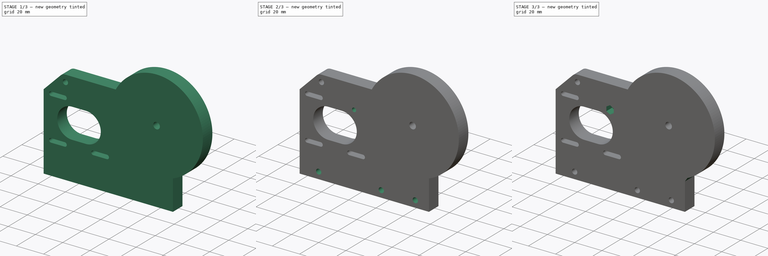
[diagram: build sequence overview — one tinted view per stage of 3, left to right]
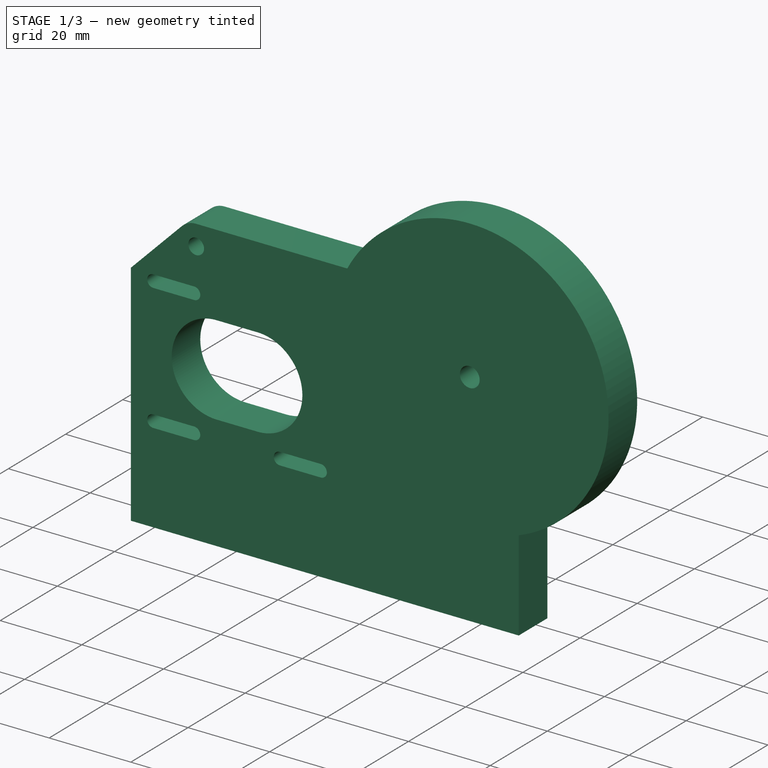
[diagram: stage 1 of 3 — iso view after this stage's code; geometry added in this stage tinted green]
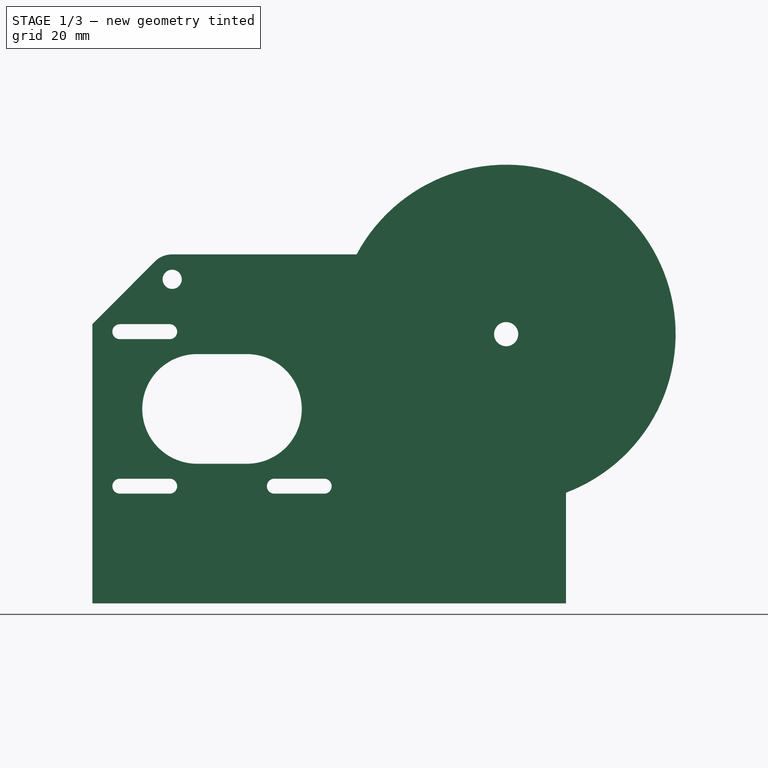
[diagram: stage 1 of 3 — front view after this stage's code; geometry added in this stage tinted green]
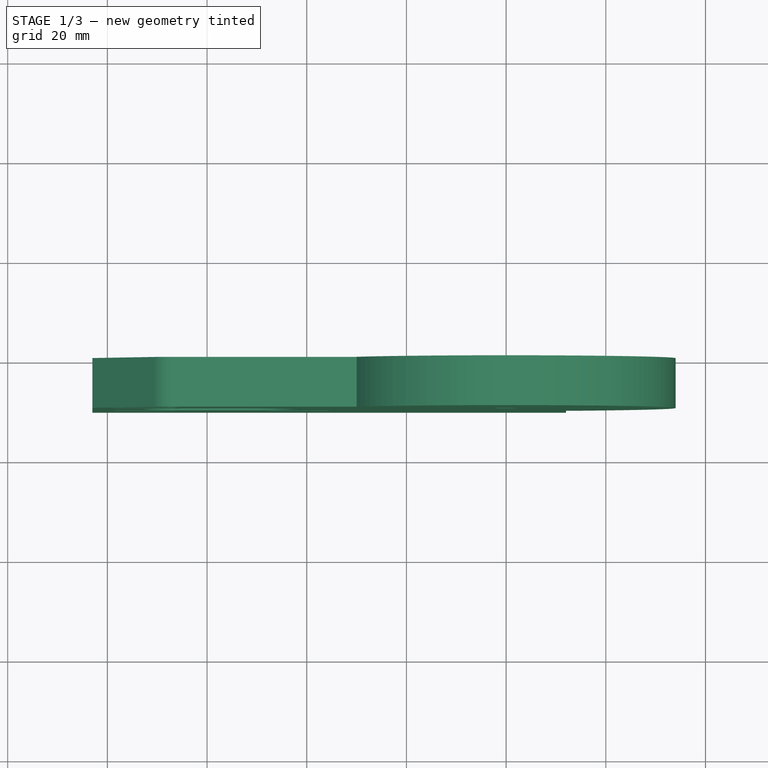
[diagram: stage 1 of 3 — top view after this stage's code; geometry added in this stage tinted green]
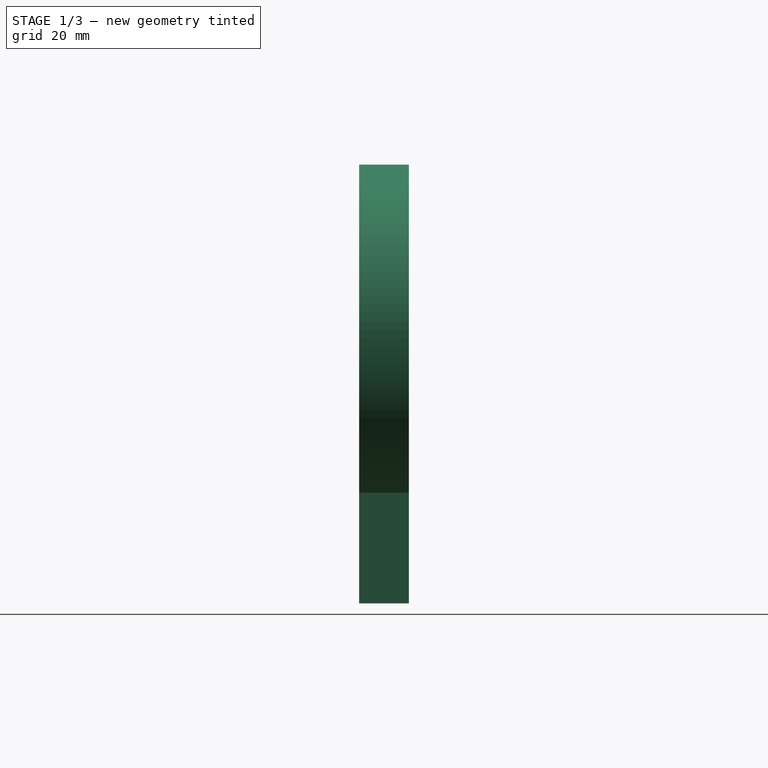
[diagram: stage 1 of 3 — right view after this stage's code; geometry added in this stage tinted green]
FCSTD DOCUMENT  (FreeCAD 0.20R29410 (Git))
Label: #7_MotorsPlateRight
License: All rights reserved
LicenseURL: http://en.wikipedia.org/wiki/All_rights_reserved
objects: Sketcher::SketchObject×5, PartDesign::Pocket×4, PartDesign::Pad×1, PartDesign::Chamfer×1, PartDesign::Body×1
note: 18 computed .brp shape members not serialized (recipe doc carries the construction recipe); baked Part::Feature solids carry a one-line shape summary decoded from their .brp

FEATURE [Sketcher::SketchObject] Sketch
  FullyConstrained = true
  MapMode = 5
  Placement = pos=(0,0,0) rot=(1,0,0;1.5708rad)
  Support = -> [XZ_Plane]
  sketch-geometry (9):
    g0: Circle CenterX=0 CenterY=0 CenterZ=0 NormalX=0 NormalY=0 NormalZ=1 AngleXU=0 Radius=2.425
    g1: ArcOfCircle CenterX=0 CenterY=0 CenterZ=0 NormalX=0 NormalY=0 NormalZ=1 AngleXU=0 Radius=34 StartAngle=5.0731 EndAngle=8.93482
    g2: LineSegment StartX=-83 StartY=-54 StartZ=0 EndX=12 EndY=-54 EndZ=0
    g3: LineSegment StartX=12 StartY=-54 StartZ=0 EndX=12 EndY=-31.8119 EndZ=0
    g4: LineSegment StartX=-83 StartY=-54 StartZ=0 EndX=-83 EndY=2 EndZ=0
    g5: Circle CenterX=-67 CenterY=11 CenterZ=0 NormalX=0 NormalY=0 NormalZ=1 AngleXU=0 Radius=1.925
    g6: ArcOfCircle CenterX=-67 CenterY=11 CenterZ=0 NormalX=0 NormalY=0 NormalZ=1 AngleXU=0 Radius=5 StartAngle=1.5708 EndAngle=2.35904
    g7: LineSegment StartX=-83 StartY=2 StartZ=0 EndX=-70.5456 EndY=14.5255 EndZ=0
    g8: LineSegment StartX=-30 StartY=16 StartZ=0 EndX=-67 EndY=16 EndZ=0
  constraints (24):
    c: Coincident(g0,g-1)
    c: Diameter(g0) = 4.85
    c: Coincident(g1,g0)
    c: Diameter(g1) = 68
    c: Horizontal(g2)
    c: Distance(g0,g2) = 54
    c: DistanceX(g0,g2) = 12
    c: Coincident(g3,g2)
    c: Vertical(g3)
    c: Distance(g2) = 95
    c: Coincident(g4,g2)
    c: Vertical(g4)
    c: Distance(g4) = 56
    c: Coincident(g1,g3)
    c: DistanceX(g5,g2) = 79
    c: Diameter(g5) = 3.85
    c: Coincident(g6,g5)
    c: Diameter(g6) = 10
    c: Coincident(g7,g4)
    c: Horizontal(g8)
    c: Tangent(g6,g7) = 1.5708
    c: Tangent(g6,g8) = -1.5708
    c: DistanceY(g2,g8) = 70
    c: Coincident(g1,g8)
FEATURE [PartDesign::Pad] Pad
  Direction = (0,-1,2e-16)
  Length = 10
  Length2 = 10
  Placement = pos=(0,0,0) rot=(1,0,0;1.5708rad)
  Profile = -> Sketch
  ReferenceAxis = -> Sketch [N_Axis]
  Type = 0
FEATURE [Sketcher::SketchObject] Sketch001
  ExternalGeometry = -> [Pad]
  FullyConstrained = true
  MapMode = 5
  Placement = pos=(0,-10,4.4e-15) rot=(1,0,0;1.5708rad)
  Support = -> [Pad]
  sketch-geometry (21):
    g0: ArcOfCircle CenterX=-62 CenterY=-15 CenterZ=0 NormalX=0 NormalY=0 NormalZ=1 AngleXU=0 Radius=11 StartAngle=1.5708 EndAngle=4.71239
    g1: ArcOfCircle CenterX=-52 CenterY=-15 CenterZ=0 NormalX=0 NormalY=0 NormalZ=1 AngleXU=0 Radius=11 StartAngle=4.71239 EndAngle=7.85398
    g2: LineSegment StartX=-62 StartY=-26 StartZ=0 EndX=-52 EndY=-26 EndZ=0
    g3: LineSegment StartX=-52 StartY=-4 StartZ=0 EndX=-62 EndY=-4 EndZ=0
    g4: ArcOfCircle CenterX=-77.5 CenterY=0.5 CenterZ=0 NormalX=0 NormalY=0 NormalZ=1 AngleXU=0 Radius=1.5 StartAngle=1.5708 EndAngle=4.71239
    g5: ArcOfCircle CenterX=-67.5 CenterY=0.5 CenterZ=0 NormalX=0 NormalY=0 NormalZ=1 AngleXU=0 Radius=1.5 StartAngle=4.71239 EndAngle=7.85398
    g6: LineSegment StartX=-77.5 StartY=-1 StartZ=0 EndX=-67.5 EndY=-1 EndZ=0
    g7: LineSegment StartX=-67.5 StartY=2 StartZ=0 EndX=-77.5 EndY=2 EndZ=0
    g8: ArcOfCircle CenterX=-77.5 CenterY=-30.5 CenterZ=0 NormalX=0 NormalY=0 NormalZ=1 AngleXU=0 Radius=1.5 StartAngle=1.5708 EndAngle=4.71239
    g9: ArcOfCircle CenterX=-67.5 CenterY=-30.5 CenterZ=0 NormalX=0 NormalY=0 NormalZ=1 AngleXU=0 Radius=1.5 StartAngle=4.71239 EndAngle=7.85398
    g10: LineSegment StartX=-77.5 StartY=-32 StartZ=0 EndX=-67.5 EndY=-32 EndZ=0
    g11: LineSegment StartX=-67.5 StartY=-29 StartZ=0 EndX=-77.5 EndY=-29 EndZ=0
    g12: ArcOfCircle CenterX=-46.5 CenterY=-30.5 CenterZ=0 NormalX=0 NormalY=0 NormalZ=1 AngleXU=0 Radius=1.5 StartAngle=1.5708 EndAngle=4.71239
    g13: ArcOfCircle CenterX=-36.5 CenterY=-30.5 CenterZ=0 NormalX=0 NormalY=0 NormalZ=1 AngleXU=0 Radius=1.5 StartAngle=4.71239 EndAngle=7.85398
    g14: LineSegment StartX=-46.5 StartY=-32 StartZ=0 EndX=-36.5 EndY=-32 EndZ=0
    g15: LineSegment StartX=-36.5 StartY=-29 StartZ=0 EndX=-46.5 EndY=-29 EndZ=0
    g16: LineSegment StartX=-77.5 StartY=-30.5 StartZ=0 EndX=-62 EndY=-15 EndZ=0
    g17: LineSegment StartX=-77.5 StartY=0.5 StartZ=0 EndX=-62 EndY=-15 EndZ=0
    g18: LineSegment StartX=-62 StartY=-15 StartZ=0 EndX=-46.5 EndY=-30.5 EndZ=0
    g19: LineSegment StartX=-67.5 StartY=-30.5 StartZ=0 EndX=-46.5 EndY=-30.5 EndZ=0
    g20: LineSegment StartX=-77.5 StartY=-30.5 StartZ=0 EndX=-77.5 EndY=0.5 EndZ=0
  constraints (50):
    c: Tangent(g0,g2) = -1.5708
    c: Tangent(g2,g1) = -1.5708
    c: Tangent(g1,g3) = -1.5708
    c: Tangent(g3,g0) = -1.5708
    c: Equal(g0,g1)
    c: Horizontal(g2)
    c: Diameter(g1) = 22
    c: DistanceX(g0,g1) = 10
    c: DistanceX(g-3,g0) = 21
    c: DistanceY(g-3,g0) = 39
    c: Tangent(g4,g6) = -1.5708
    c: Tangent(g6,g5) = -1.5708
    c: Tangent(g5,g7) = -1.5708
    c: Tangent(g7,g4) = -1.5708
    c: Equal(g4,g5)
    c: Horizontal(g6)
    c: Tangent(g8,g10) = -1.5708
    c: Tangent(g10,g9) = -1.5708
    c: Tangent(g9,g11) = -1.5708
    c: Tangent(g11,g8) = -1.5708
    c: Equal(g8,g9)
    c: Horizontal(g10)
    c: Tangent(g12,g14) = -1.5708
    c: Tangent(g14,g13) = -1.5708
    c: Tangent(g13,g15) = -1.5708
    c: Tangent(g15,g12) = -1.5708
    c: Equal(g12,g13)
    c: Horizontal(g14)
    c: Diameter(g13) = 3
    c: Diameter(g9) = 3
    c: Diameter(g5) = 3
    c: DistanceX(g4,g5) = 10
    c: DistanceX(g8,g9) = 10
    c: DistanceX(g12,g13) = 10
    c: DistanceY(g9,g5) = 31
    c: DistanceX(g9,g13) = 31
    c: Coincident(g16,g8)
    c: Coincident(g16,g0)
    c: Coincident(g17,g4)
    c: Coincident(g17,g0)
    c: Coincident(g18,g0)
    c: Coincident(g18,g12)
    c: Equal(g16,g17)
    c: Equal(g18,g16)
    c: Coincident(g19,g9)
    c: Coincident(g19,g12)
    c: Parallel(g19,g2)
    c: Coincident(g20,g8)
    c: Coincident(g20,g4)
    c: Parallel(g20,g-3)
FEATURE [PartDesign::Pocket] Pocket
  BaseFeature = -> Pad
  Direction = (0,1,-2e-16)
  Length = 12
  Length2 = 5
  Placement = pos=(0,0,0) rot=(1,0,0;1.5708rad)
  Profile = -> Sketch001
  ReferenceAxis = -> Sketch001 [N_Axis]
  Type = 0
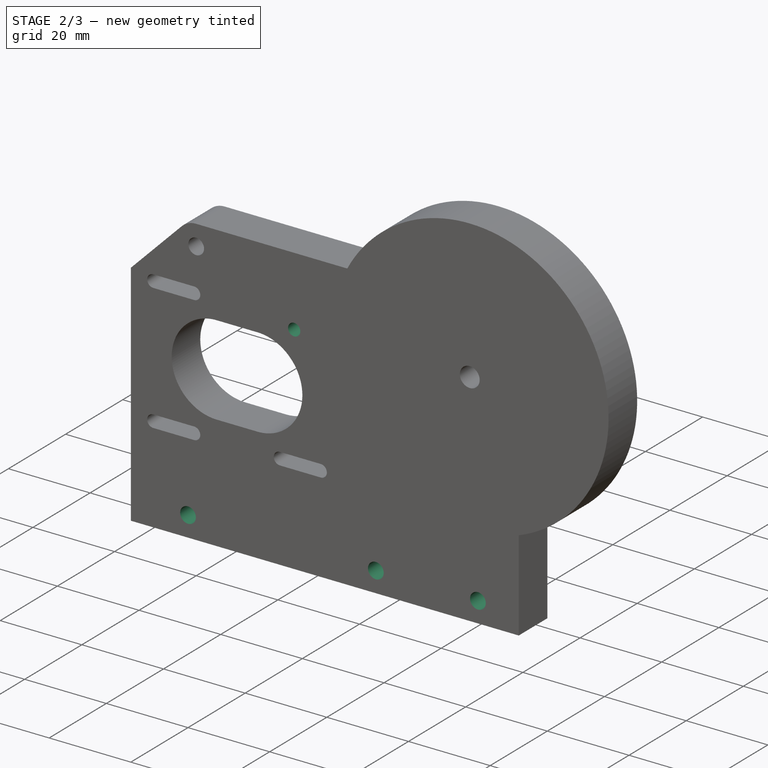
[diagram: stage 2 of 3 — iso view after this stage's code; geometry added in this stage tinted green]
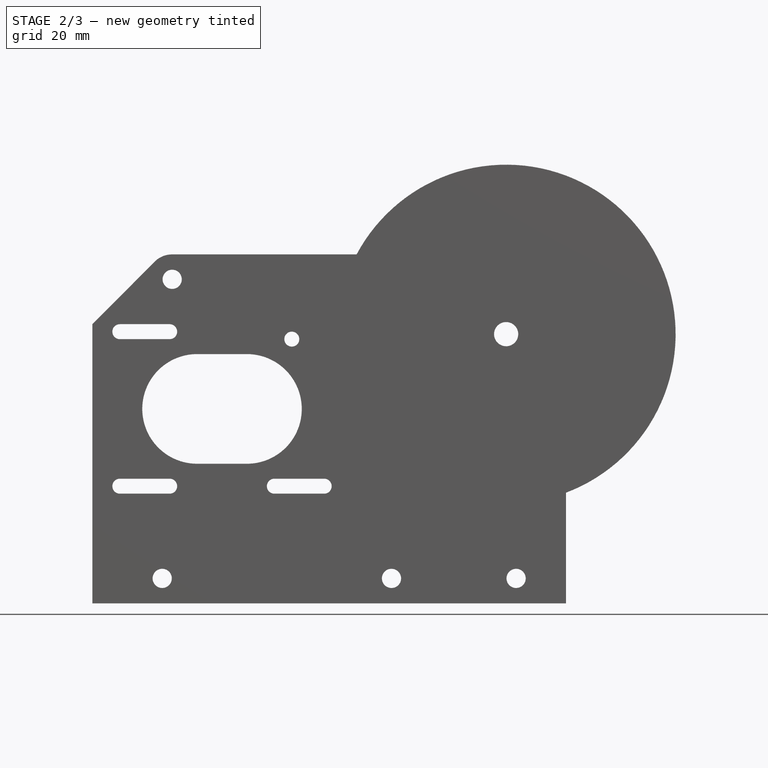
[diagram: stage 2 of 3 — front view after this stage's code; geometry added in this stage tinted green]
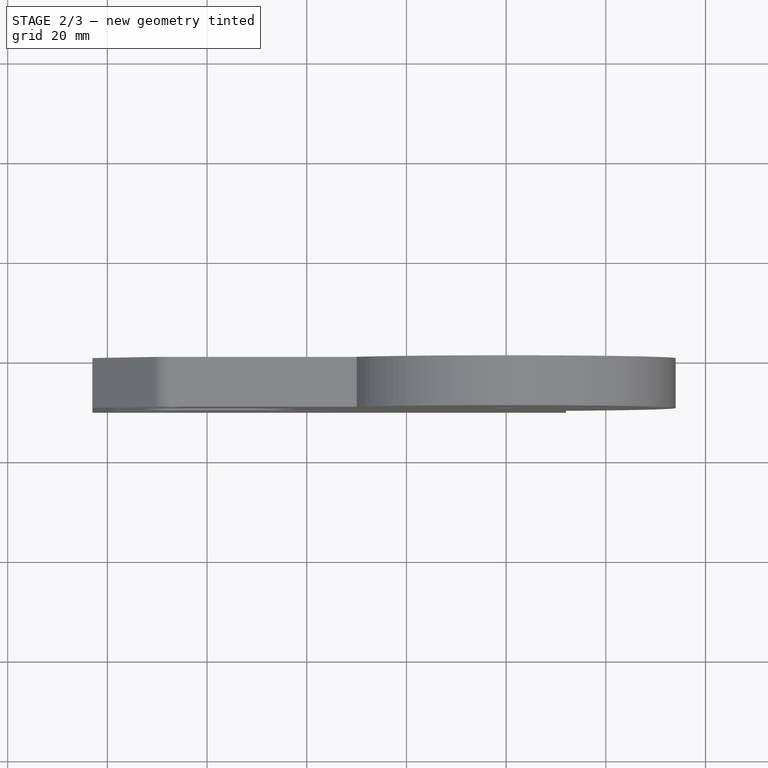
[diagram: stage 2 of 3 — top view after this stage's code; geometry added in this stage tinted green]
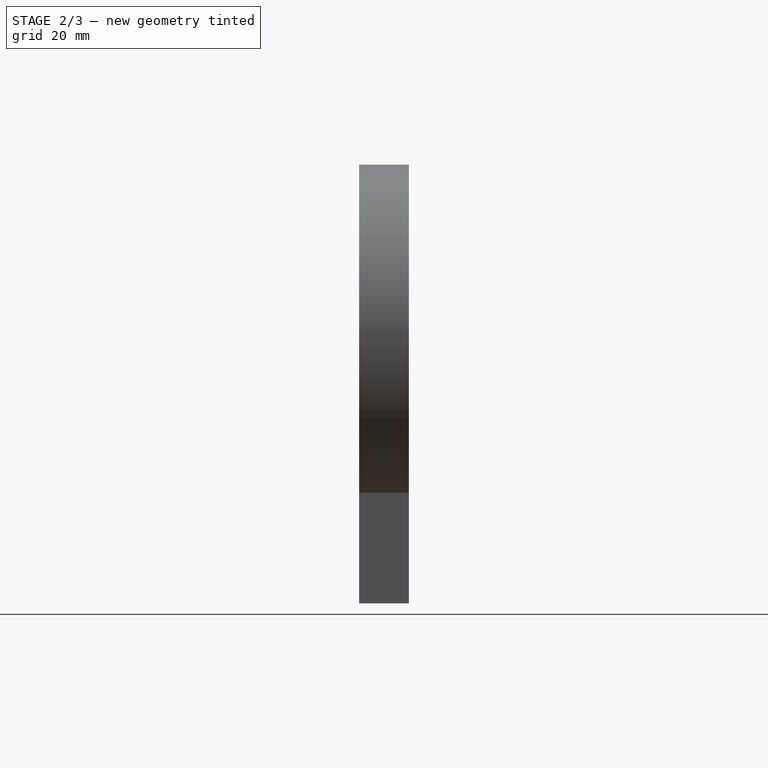
[diagram: stage 2 of 3 — right view after this stage's code; geometry added in this stage tinted green]
FEATURE [Sketcher::SketchObject] Sketch002
  ExternalGeometry = -> [Pocket]
  FullyConstrained = true
  MapMode = 5
  Placement = pos=(0,-10,4.4e-15) rot=(1,0,0;1.5708rad)
  Support = -> [Pocket]
  sketch-geometry (3):
    g0: Circle CenterX=-69 CenterY=-49 CenterZ=0 NormalX=0 NormalY=0 NormalZ=1 AngleXU=0 Radius=1.925
    g1: Circle CenterX=-23 CenterY=-49 CenterZ=0 NormalX=0 NormalY=0 NormalZ=1 AngleXU=0 Radius=1.925
    g2: Circle CenterX=2 CenterY=-49 CenterZ=0 NormalX=0 NormalY=0 NormalZ=1 AngleXU=0 Radius=1.925
  constraints (9):
    c: Diameter(g2) = 3.85
    c: Diameter(g1) = 3.85
    c: Diameter(g0) = 3.85
    c: DistanceX(g2,g-3) = 10
    c: DistanceY(g-3,g2) = 5
    c: DistanceX(g1,g-3) = 35
    c: DistanceY(g-3,g1) = 5
    c: DistanceY(g-3,g0) = 5
    c: DistanceX(g0,g-3) = 81
FEATURE [PartDesign::Pocket] Pocket001
  BaseFeature = -> Pocket
  Direction = (0,1,-2e-16)
  Length = 12
  Length2 = 5
  Placement = pos=(0,0,0) rot=(1,0,0;1.5708rad)
  Profile = -> Sketch002
  ReferenceAxis = -> Sketch002 [N_Axis]
  Type = 0
FEATURE [Sketcher::SketchObject] Sketch003
  ExternalGeometry = -> [Pocket001]
  FullyConstrained = true
  MapMode = 5
  Placement = pos=(0,-10,4.4e-15) rot=(1,0,0;1.5708rad)
  Support = -> [Pocket001]
  sketch-geometry (1):
    g0: Circle CenterX=-43 CenterY=-1 CenterZ=0 NormalX=0 NormalY=0 NormalZ=1 AngleXU=0 Radius=1.5
  constraints (3):
    c: DistanceX(g-3,g0) = 40
    c: DistanceY(g-3,g0) = 53
    c: Diameter(g0) = 3
FEATURE [PartDesign::Pocket] Pocket002
  BaseFeature = -> Pocket001
  Direction = (0,1,-4e-16)
  Length = 12
  Length2 = 5
  Placement = pos=(0,0,0) rot=(1,0,0;1.5708rad)
  Profile = -> Sketch003
  ReferenceAxis = -> Sketch003 [N_Axis]
  Type = 0
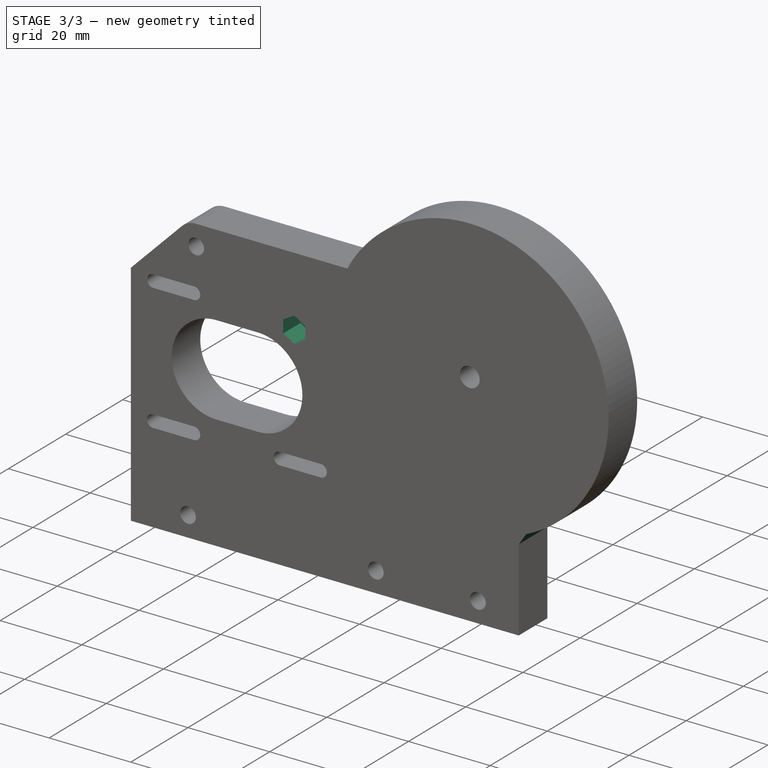
[diagram: stage 3 of 3 — iso view after this stage's code; geometry added in this stage tinted green]
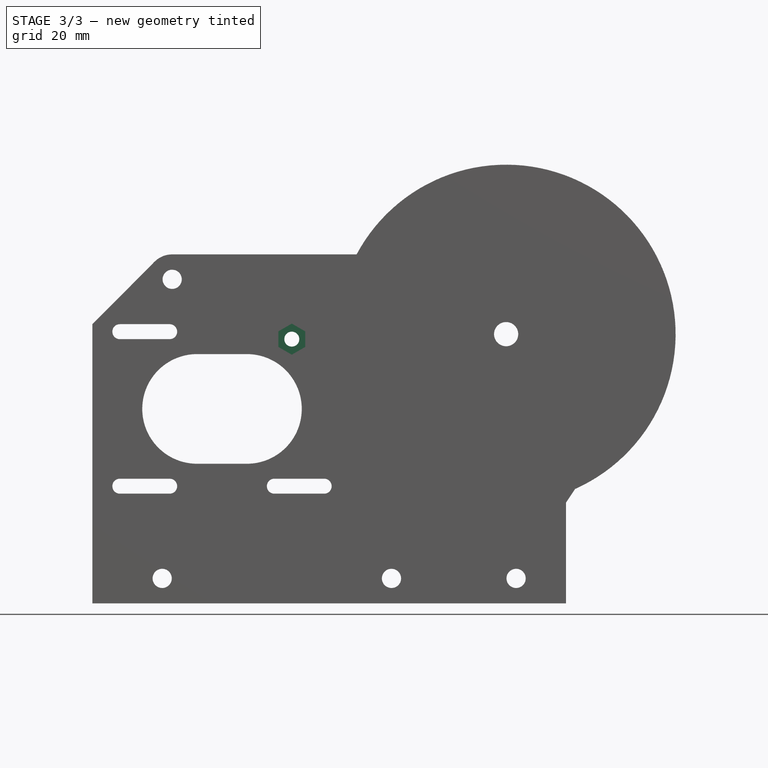
[diagram: stage 3 of 3 — front view after this stage's code; geometry added in this stage tinted green]
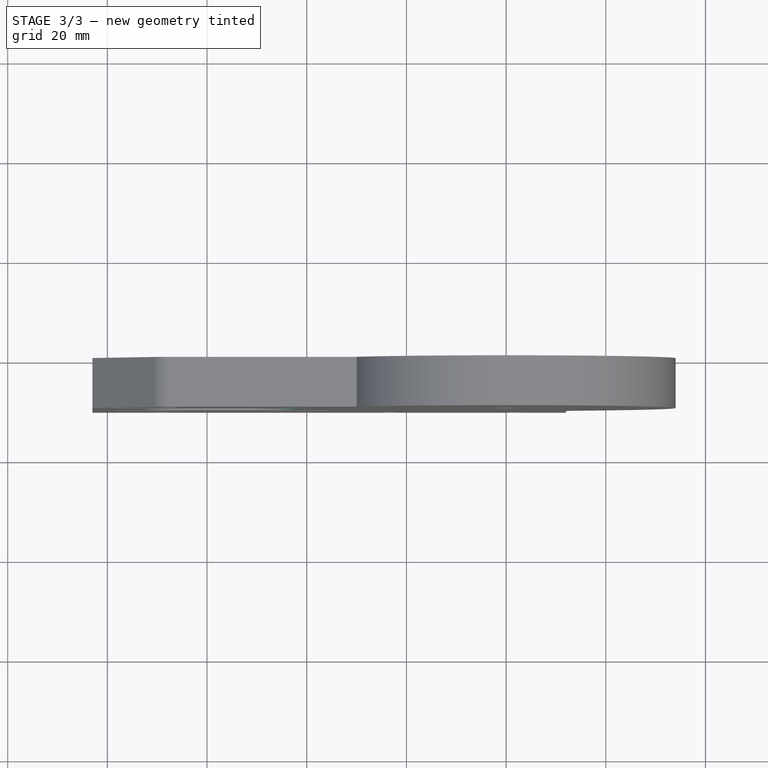
[diagram: stage 3 of 3 — top view after this stage's code; geometry added in this stage tinted green]
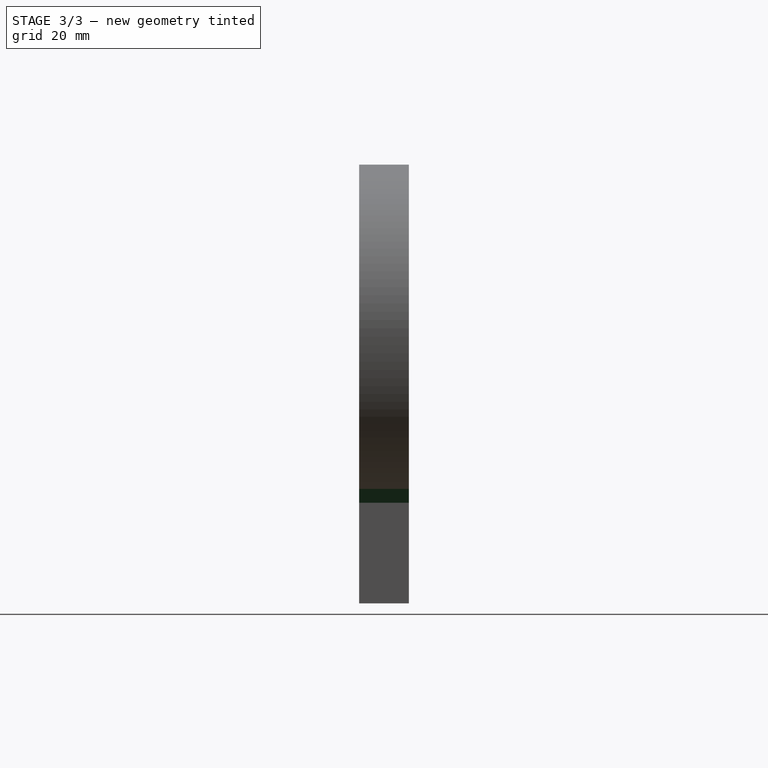
[diagram: stage 3 of 3 — right view after this stage's code; geometry added in this stage tinted green]
FEATURE [Sketcher::SketchObject] Sketch004
  ExternalGeometry = -> [Pocket002]
  FullyConstrained = true
  MapMode = 5
  Placement = pos=(0,-10,5.5e-15) rot=(1,0,0;1.5708rad)
  Support = -> [Pocket002]
  sketch-geometry (7):
    g0: LineSegment StartX=-43 StartY=-4.11769 StartZ=0 EndX=-40.3 EndY=-2.55885 EndZ=0
    g1: LineSegment StartX=-40.3 StartY=-2.55885 StartZ=0 EndX=-40.3 EndY=0.558846 EndZ=0
    g2: LineSegment StartX=-40.3 StartY=0.558846 StartZ=0 EndX=-43 EndY=2.11769 EndZ=0
    g3: LineSegment StartX=-43 StartY=2.11769 StartZ=0 EndX=-45.7 EndY=0.558846 EndZ=0
    g4: LineSegment StartX=-45.7 StartY=0.558846 StartZ=0 EndX=-45.7 EndY=-2.55885 EndZ=0
    g5: LineSegment StartX=-45.7 StartY=-2.55885 StartZ=0 EndX=-43 EndY=-4.11769 EndZ=0
    g6: Circle CenterX=-43 CenterY=-1 CenterZ=0 NormalX=0 NormalY=0 NormalZ=1 AngleXU=0 Radius=3.11769
  constraints (16):
    c: Coincident(g0,g1)
    c: Coincident(g1,g2)
    c: Coincident(g2,g3)
    c: Coincident(g3,g4)
    c: Coincident(g4,g5)
    c: Coincident(g5,g0)
    c: Equal(g0, g1-g5) x5
    c: PointOnObject(g0,g6)
    c: PointOnObject(g1,g6)
    c: PointOnObject(g2,g6)
    c: PointOnObject(g3,g6)
    c: PointOnObject(g4,g6)
    c: PointOnObject(g5,g6)
    c: Coincident(g6,g-3)
    c: Distance(g3,g1) = 5.4
    c: Parallel(g4,g-2)
FEATURE [PartDesign::Pocket] Pocket003
  BaseFeature = -> Pocket002
  Direction = (0,1,-4e-16)
  Length = 6
  Length2 = 5
  Placement = pos=(0,0,0) rot=(1,0,0;1.5708rad)
  Profile = -> Sketch004
  ReferenceAxis = -> Sketch004 [N_Axis]
  Type = 0
FEATURE [PartDesign::Chamfer] Chamfer
  Angle = 45
  Base = -> Pocket003 [Edge8]
  BaseFeature = -> Pocket003
  ChamferType = 0
  FlipDirection = false
  Placement = pos=(0,0,0) rot=(1,0,0;1.5708rad)
  Size = 2
  Size2 = 1
  SupportTransform = false
  UseAllEdges = false
FEATURE [PartDesign::Body] Body
  Group = -> [Sketch,Pad,Sketch001,Pocket,Sketch002,Pocket001,Sketch003,Pocket002,Sketch004,Pocket003,Chamfer]
  Origin = -> Origin
  Tip = -> Chamfer
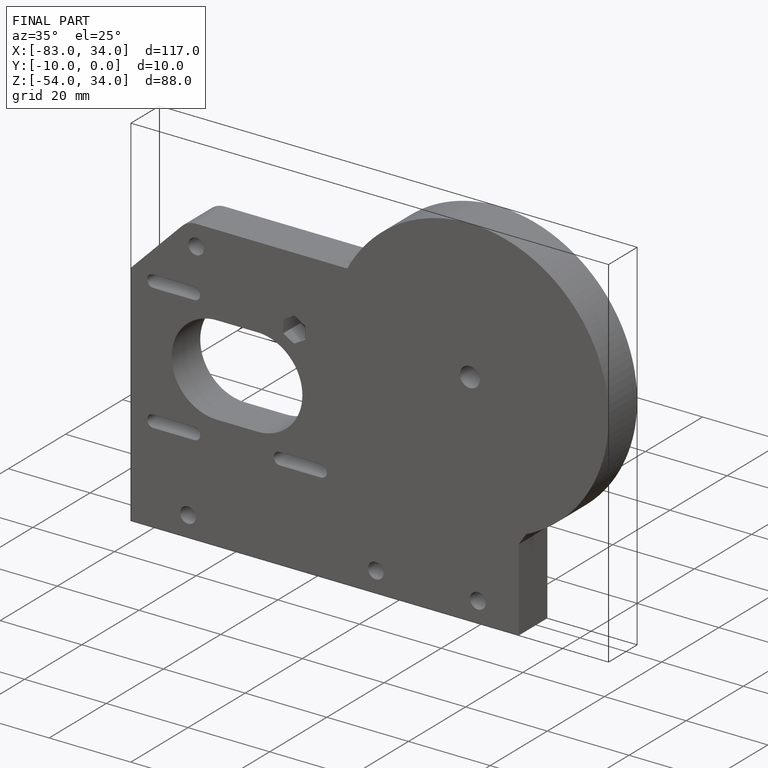
[diagram: finished part — iso view with bounding-box wireframe]
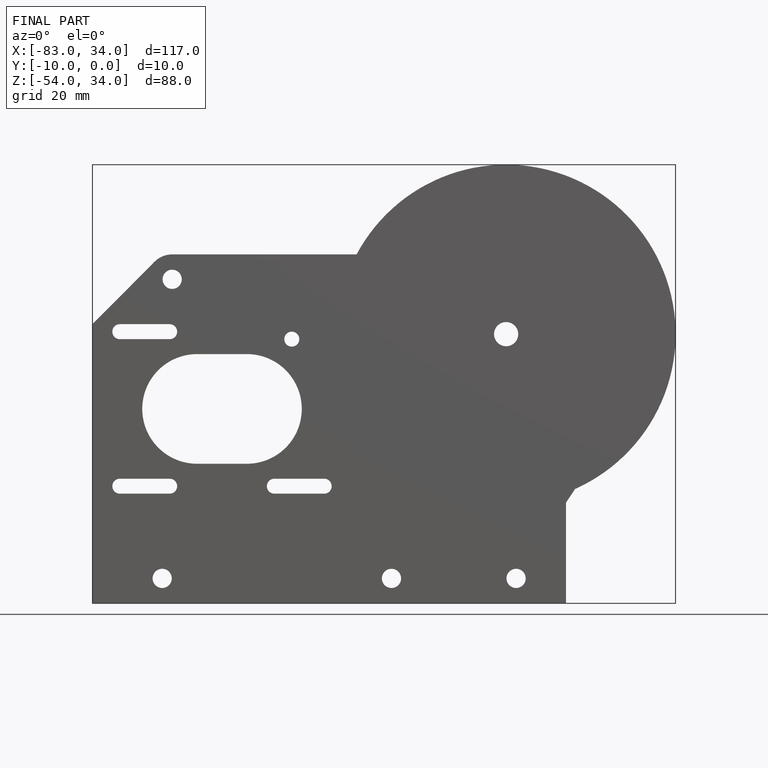
[diagram: finished part — front view with bounding-box wireframe]
